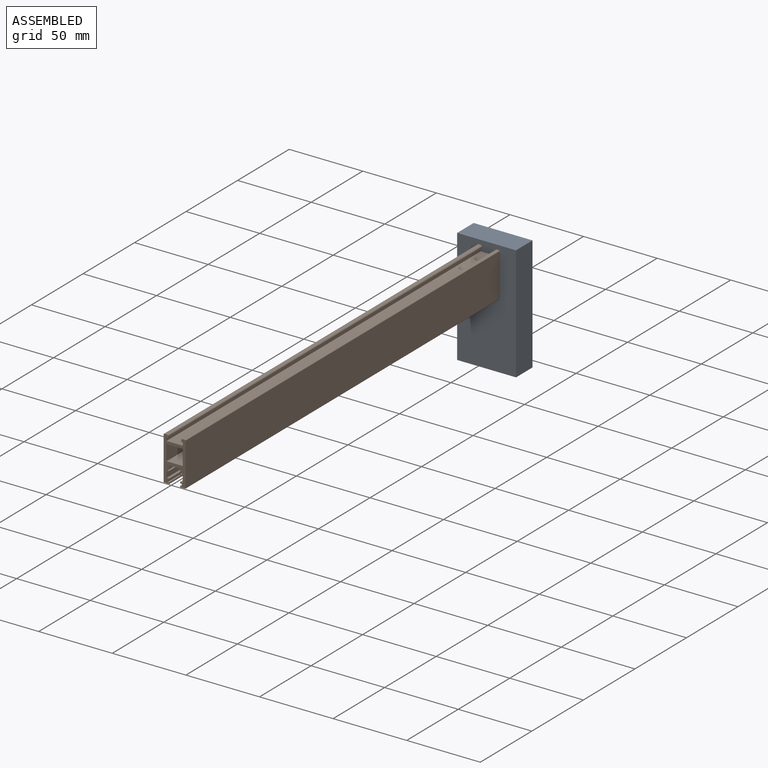
[diagram: assembled view]
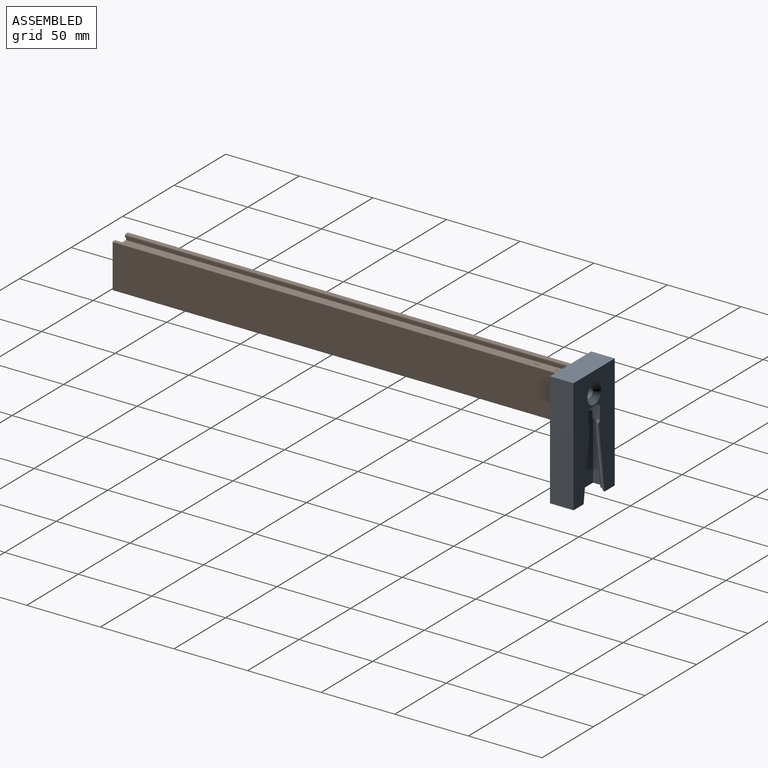
[diagram: assembled view, second angle]
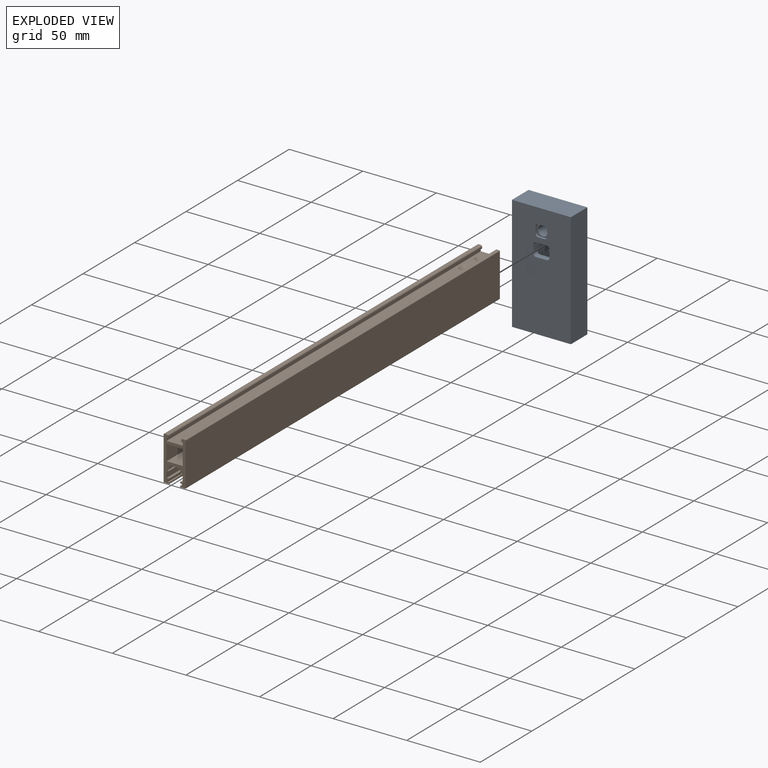
[diagram: exploded view]
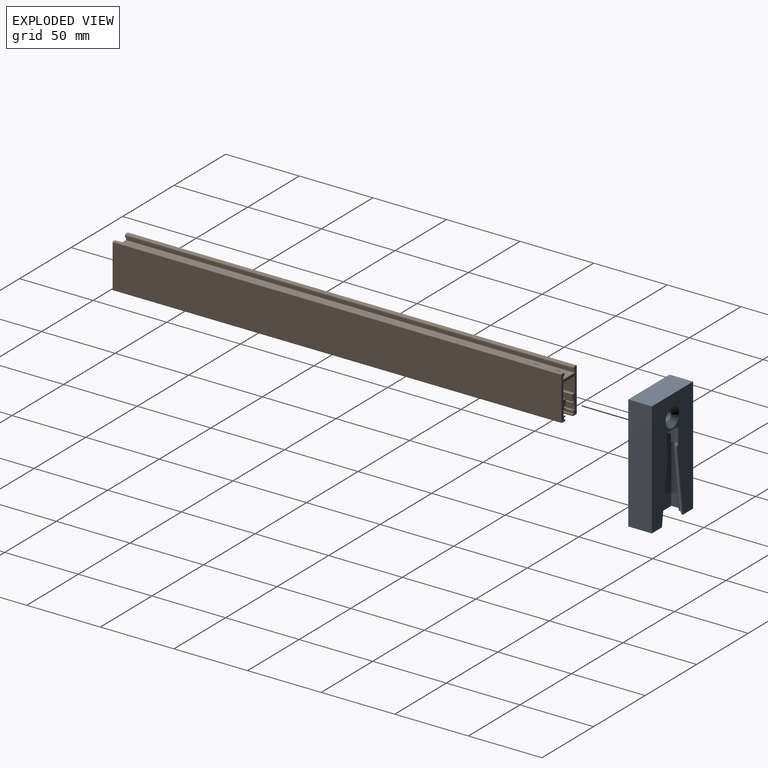
[diagram: exploded view, second angle]
ASSEMBLY  parts=2 mates=2
PART A: 46 faces, bbox 40x16x78 mm
  f0: plane 40x16mm, normal (0,0,-1), area 298.6mm2, adj f1,f2,f3,f4,f7,f9,f10,f11
  f1: plane 50x10.5mm, normal (0,-1,0), area 308mm2, adj f0,f14,f15,f28,f33,f35,f44
  f2: plane 43.27x5.7mm, normal (-0.99,0,-0.13), area 43.6mm2, adj f0,f11,f34,f37
  f3: plane 50x10.5mm, normal (0,-1,0), area 308mm2, adj f0,f5,f12,f27,f30,f32,f45
  f4: plane 43.27x5.7mm, normal (0.99,0,-0.13), area 43.6mm2, adj f0,f11,f31,f36
  f5: plane 8.5x7mm, normal (0,0,-1), area 59.5mm2, adj f3,f13,f27,f45
  f6: cylinder r=3.37mm len=11.25mm, axis (0,-1,0), area 237.9mm2, adj f16,f17
  f7: plane 78x16mm, normal (1,0,0), area 1248mm2, adj f0,f8,f10,f11
  f8: plane 40x16mm, normal (0,0,1), area 640mm2, adj f7,f9,f10,f11
  f9: plane 78x16mm, normal (-1,0,0), area 1248mm2, adj f0,f8,f10,f11
  f10: plane 78x40mm, normal (0,-1,0), area 2963.9mm2, adj f0,f7,f8,f9,f18,f19,f20,f21
  f11: plane 78x40mm, normal (0,1,0), area 2205.8mm2, adj f0,f2,f4,f7,f8,f9,f16,f27
  f12: plane 48x7mm, normal (1,0,0), area 336mm2, adj f0,f3,f13,f45
  f13: plane 50x32mm, normal (0,1,0), area 1569.8mm2, adj f0,f5,f12,f14,f15,f26,f27,f28
  f14: plane 48x7mm, normal (-1,0,0), area 336mm2, adj f0,f1,f13,f44
  f15: plane 8.5x7mm, normal (0,0,-1), area 59.5mm2, adj f1,f13,f28,f44
  f16: cone r=6.62mm half-angle=45deg, axis (0,1,0), area 144.1mm2, adj f6,f11
  f17: plane 8x8mm, normal (0,-1,0), area 25mm2, adj f6,f18,f19,f20,f21,f22,f23,f24
  f18: plane 4x1.5mm, normal (-1,0,0), area 6mm2, adj f10,f17,f23,f24
  f19: plane 4x1.5mm, normal (0,0,1), area 6mm2, adj f10,f17,f22,f23
  f20: plane 4x1.5mm, normal (1,0,0), area 6mm2, adj f10,f17,f22,f25
  f21: plane 4x1.5mm, normal (0,0,-1), area 6mm2, adj f10,f17,f24,f25
  f22: cylinder r=2mm len=2mm, axis (0,1,0), area 4.7mm2, adj f10,f17,f19,f20
  f23: cylinder r=2mm len=2mm, axis (0,1,0), area 4.7mm2, adj f10,f17,f18,f19
  f24: cylinder r=2mm len=2mm, axis (0,1,0), area 4.7mm2, adj f10,f17,f18,f21
  f25: cylinder r=2mm len=2mm, axis (0,1,0), area 4.7mm2, adj f10,f17,f20,f21
  f26: plane 7x4mm, normal (0,0,1), area 28mm2, adj f10,f13,f42,f43
  f27: plane 16x9mm, normal (1,0,0), area 92.7mm2, adj f3,f5,f10,f11,f13,f31,f32,f38
  f28: plane 16x9mm, normal (-1,0,0), area 92.7mm2, adj f1,f10,f11,f13,f15,f33,f34,f40
  f29: plane 16x7mm, normal (0,0,-1), area 112mm2, adj f10,f11,f39,f40
  f30: plane 45.25x5.96mm, normal (0.99,0,-0.13), area 45.6mm2, adj f0,f3,f31,f32
  f31: plane 46.16x8.74mm, normal (0.7,-0.71,-0.09), area 192.7mm2, adj f0,f4,f27,f30,f32,f36,f38
  f32: plane 2.78x1.8mm, normal (0,0,-1), area 3.4mm2, adj f3,f27,f30,f31
  f33: plane 2.78x1.8mm, normal (0,0,-1), area 3.4mm2, adj f1,f28,f34,f35
  f34: plane 46.16x8.74mm, normal (-0.7,-0.71,-0.09), area 192.7mm2, adj f0,f2,f28,f33,f35,f37,f41
  f35: plane 45.25x5.96mm, normal (-0.99,0,-0.13), area 45.6mm2, adj f0,f1,f33,f34
  f36: cylinder r=2mm len=1.68mm, axis (0,1,0), area 2.1mm2, adj f4,f11,f31,f38
  f37: cylinder r=2mm len=1.68mm, axis (0,-1,0), area 2.1mm2, adj f2,f11,f34,f41
  f38: cylinder r=2mm len=2.34mm, axis (0,1,0), area 3mm2, adj f11,f27,f31,f36
  f39: cylinder r=2mm len=16mm, axis (0,1,0), area 50.3mm2, adj f10,f11,f27,f29
  f40: cylinder r=2mm len=16mm, axis (0,1,0), area 50.3mm2, adj f10,f11,f28,f29
  f41: cylinder r=2mm len=2.34mm, axis (0,-1,0), area 3mm2, adj f11,f28,f34,f37
  f42: cylinder r=2mm len=4mm, axis (0,1,0), area 12.6mm2, adj f10,f13,f26,f27
  f43: cylinder r=2mm len=4mm, axis (0,1,0), area 12.6mm2, adj f10,f13,f26,f28
  f44: cylinder r=2mm len=7mm, axis (0,-1,0), area 22mm2, adj f1,f13,f14,f15
  f45: cylinder r=2mm len=7mm, axis (0,1,0), area 22mm2, adj f3,f5,f12,f13
PART B: 57 faces, bbox 15x30x304.8 mm
  f0: plane 304.8x3.9mm, normal (-1,0,0), area 1188.7mm2, adj f6,f8,f43,f47
  f1: plane 304.8x7.4mm, normal (0,-1,0), area 2139.4mm2, adj f6,f8,f28,f37,f50,f51,f52
  f2: plane 304.8x11mm, normal (0,1,0), area 3252.3mm2, adj f6,f8,f14,f15,f22,f23
  f3: plane 304.8x1.5mm, normal (0,1,0), area 457.2mm2, adj f6,f8,f25,f56
  f4: plane 304.8x3.3mm, normal (0,-1,0), area 1005.8mm2, adj f6,f8,f26,f38
  f5: plane 304.8x1.5mm, normal (0,1,0), area 457.2mm2, adj f6,f8,f27,f55
  f6: plane 30x15mm, normal (0,0,-1), area 174.3mm2, adj f0,f1,f2,f3,f4,f5,f7,f9
  f7: plane 304.8x3.3mm, normal (0,-1,0), area 1005.8mm2, adj f6,f8,f24,f35
  f8: plane 30x15mm, normal (0,0,1), area 187.5mm2, adj f0,f1,f2,f3,f4,f5,f7,f9
  f9: plane 304.8x29mm, normal (-1,0,0), area 8839.2mm2, adj f6,f8,f24,f25
  f10: plane 304.8x29mm, normal (1,0,0), area 8839.2mm2, adj f6,f8,f26,f27
  f11: plane 304.8x3.9mm, normal (1,0,0), area 1188.7mm2, adj f6,f8,f30,f46
  f12: plane 304.8x1mm, normal (1,0,0), area 304.8mm2, adj f6,f8,f13,f56
  f13: plane 304.8x1mm, normal (0,-1,0), area 304.8mm2, adj f6,f8,f12,f14
  f14: plane 304.8x2mm, normal (1,0,0), area 609.6mm2, adj f2,f6,f8,f13
  f15: plane 304.8x2mm, normal (-1,0,0), area 609.6mm2, adj f2,f6,f8,f16
  f16: plane 304.8x1mm, normal (0,-1,0), area 304.8mm2, adj f6,f8,f15,f17
  f17: plane 304.8x1mm, normal (-1,0,0), area 304.8mm2, adj f6,f8,f16,f55
  f18: plane 304.8x10.5mm, normal (-1,0,0), area 3200.4mm2, adj f6,f8,f19,f21
  f19: plane 304.8x11mm, normal (0,-1,0), area 3327.6mm2, adj f6,f8,f18,f20,f22,f23
  f20: plane 304.8x10.5mm, normal (1,0,0), area 3200.4mm2, adj f6,f8,f19,f21
  f21: plane 304.8x11mm, normal (0,1,0), area 3236.7mm2, adj f6,f8,f18,f20,f50,f51,f52
  f22: cone r=4mm half-angle=45deg, axis (0,1,0), area 53.3mm2, adj f2,f19
  f23: cone r=4mm half-angle=45deg, axis (0,1,0), area 53.3mm2, adj f2,f19
  f24: cylinder r=0.5mm len=304.8mm, axis (0,0,1), area 239.4mm2, adj f6,f7,f8,f9
  f25: cylinder r=0.5mm len=304.8mm, axis (0,0,-1), area 239.4mm2, adj f3,f6,f8,f9
  f26: cylinder r=0.5mm len=304.8mm, axis (0,0,-1), area 239.4mm2, adj f4,f6,f8,f10
  f27: cylinder r=0.5mm len=304.8mm, axis (0,0,1), area 239.4mm2, adj f5,f6,f8,f10
  f28: plane 304.8x1.9mm, normal (1,0,0), area 579.1mm2, adj f1,f6,f8,f29
  f29: plane 304.8x1.2mm, normal (0,-1,0), area 365.8mm2, adj f6,f8,f28,f53
  f30: plane 304.8x1.8mm, normal (0,1,0), area 548.6mm2, adj f6,f8,f11,f31
  f31: plane 304.8x0.9mm, normal (1,0,0), area 274.3mm2, adj f6,f8,f30,f32
  f32: plane 304.8x1.2mm, normal (0,-1,0), area 365.8mm2, adj f6,f8,f31,f33
  f33: plane 304.8x1.5mm, normal (1,0,0), area 457.2mm2, adj f6,f8,f32,f34
  f34: plane 304.8x1.2mm, normal (0,1,0), area 365.8mm2, adj f6,f8,f33,f35
  f35: plane 304.8x0.9mm, normal (1,0,0), area 274.3mm2, adj f6,f7,f8,f34
  f36: plane 304.8x1.2mm, normal (0,-1,0), area 365.8mm2, adj f6,f8,f37,f54
  f37: plane 304.8x1.9mm, normal (-1,0,0), area 579.1mm2, adj f1,f6,f8,f36
  f38: plane 304.8x0.9mm, normal (-1,0,0), area 274.3mm2, adj f4,f6,f8,f39
  f39: plane 304.8x1.2mm, normal (0,1,0), area 365.8mm2, adj f6,f8,f38,f40
  f40: plane 304.8x1.5mm, normal (-1,0,0), area 457.2mm2, adj f6,f8,f39,f41
  f41: plane 304.8x1.2mm, normal (0,-1,0), area 365.8mm2, adj f6,f8,f40,f42
  f42: plane 304.8x0.9mm, normal (-1,0,0), area 274.3mm2, adj f6,f8,f41,f43
  f43: plane 304.8x1.8mm, normal (0,1,0), area 548.6mm2, adj f0,f6,f8,f42
  f44: plane 304.8x1.2mm, normal (0,1,0), area 365.8mm2, adj f6,f8,f45,f53
  f45: plane 304.8x0.9mm, normal (1,0,0), area 274.3mm2, adj f6,f8,f44,f46
  f46: plane 304.8x1.8mm, normal (0,-1,0), area 548.6mm2, adj f6,f8,f11,f45
  f47: plane 304.8x1.8mm, normal (0,-1,0), area 548.6mm2, adj f0,f6,f8,f48
  f48: plane 304.8x0.9mm, normal (-1,0,0), area 274.3mm2, adj f6,f8,f47,f49
  f49: plane 304.8x1.2mm, normal (0,1,0), area 365.8mm2, adj f6,f8,f48,f54
  f50: cylinder r=3.3mm len=6.6mm, axis (0,-1,0), area 20.7mm2, adj f1,f21,f51,f52
  f51: plane 15x2mm, normal (-1,0,0), area 30mm2, adj f1,f6,f21,f50
  f52: plane 15x2mm, normal (1,0,0), area 30mm2, adj f1,f6,f21,f50
  f53: plane 304.8x1.5mm, normal (1,0,0), area 457.2mm2, adj f6,f8,f29,f44
  f54: plane 304.8x1.5mm, normal (-1,0,0), area 457.2mm2, adj f6,f8,f36,f49
  f55: cylinder r=1mm len=304.8mm, axis (0,0,1), area 478.8mm2, adj f5,f6,f8,f17
  f56: cylinder r=1mm len=304.8mm, axis (0,0,1), area 478.8mm2, adj f3,f6,f8,f12
PLACE A rot(axis=(1,0,0),0deg) t=(11.83,133.67,10.7)mm
PLACE B rot(axis=(1,0,0),90deg) t=(13.33,-44.26,31.7)mm
MATE parallel A.f20 <-> B.f20  axis (1,0,0) through (7.83,118.42,35.45)mm
MATE planar A.f10 <-> B.f6  axis (0,-1,0) through (11.83,117.67,9.78)mm
